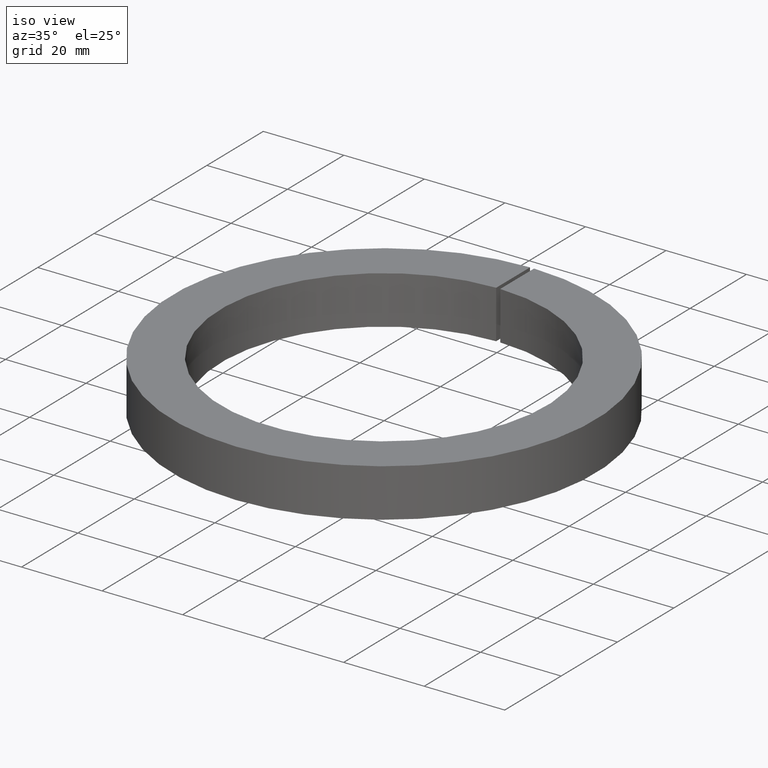
[diagram: clean part render]
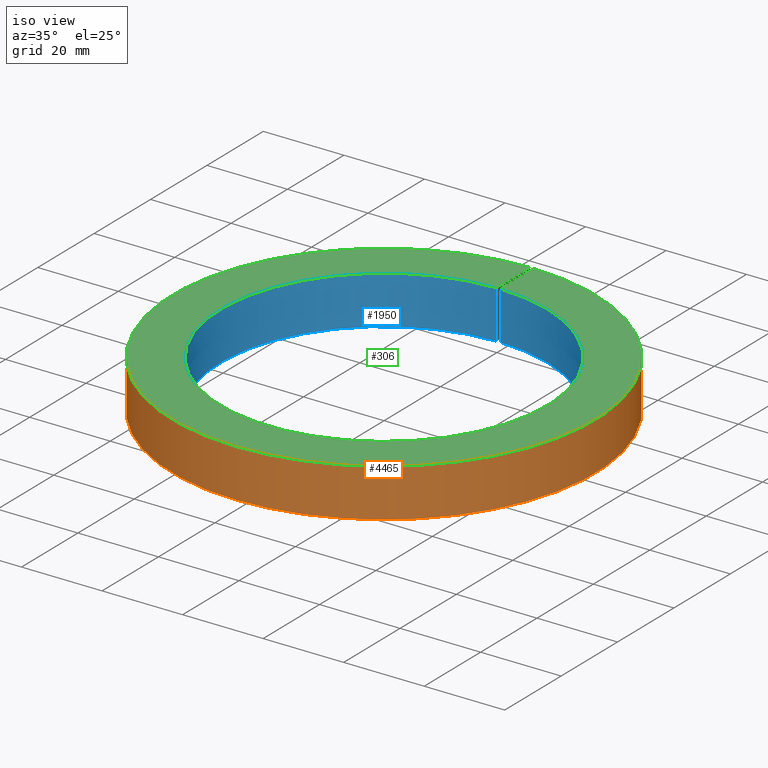
[diagram: same view with three faces highlighted in distinct colors, each labeled with its STEP entity id]
A machine part, iso view with three faces highlighted in distinct colors.
Their STEP definitions:

[orange] entity #4465 — the highlighted cylindrical surface (partial cylindrical patch) has radius 52.5 mm, axis along (-0, -0, -1).
#471 = CARTESIAN_POINT ( 'NONE',  ( -0.5000000000000000000, 52.49761899362674500, 6.000000000000000900 ) ) ;
#883 = CIRCLE ( 'NONE', #11005, 52.50000000000000000 ) ;
#1256 = LINE ( 'NONE', #9727, #6940 ) ;
#1425 = EDGE_CURVE ( 'NONE', #7160, #8765, #1256, .T. ) ;
#2159 = DIRECTION ( 'NONE',  ( -0.0000000000000000000, -0.0000000000000000000, 1.000000000000000000 ) ) ;
#2280 = CYLINDRICAL_SURFACE ( 'NONE', #4346, 52.50000000000000000 ) ;
#2641 = DIRECTION ( 'NONE',  ( -0.0000000000000000000, -0.0000000000000000000, -1.000000000000000000 ) ) ;
#3023 = AXIS2_PLACEMENT_3D ( 'NONE', #10129, #2641, #6400 ) ;
#3970 = CARTESIAN_POINT ( 'NONE',  ( 0.0000000000000000000, 0.0000000000000000000, 0.0000000000000000000 ) ) ;
#4192 = VERTEX_POINT ( 'NONE', #5134 ) ;
#4214 = CARTESIAN_POINT ( 'NONE',  ( 0.5000000000000000000, 52.49761899362674500, 5.999999999999998200 ) ) ;
#4346 = AXIS2_PLACEMENT_3D ( 'NONE', #3970, #5839, #4891 ) ;
#4465 = ADVANCED_FACE ( 'NONE', ( #7644 ), #2280, .T. ) ;
#4891 = DIRECTION ( 'NONE',  ( -1.000000000000000000, 0.0000000000000000000, 0.0000000000000000000 ) ) ;
#5134 = CARTESIAN_POINT ( 'NONE',  ( -0.5000000000000000000, 52.49761899362674500, -6.000000000000001800 ) ) ;
#5655 = ORIENTED_EDGE ( 'NONE', *, *, #1425, .T. ) ;
#5839 = DIRECTION ( 'NONE',  ( -0.0000000000000000000, -0.0000000000000000000, -1.000000000000000000 ) ) ;
#5914 = VECTOR ( 'NONE', #12215, 1000.000000000000000 ) ;
#5964 = VERTEX_POINT ( 'NONE', #471 ) ;
#6283 = CIRCLE ( 'NONE', #3023, 52.50000000000000000 ) ;
#6400 = DIRECTION ( 'NONE',  ( -1.000000000000000000, 0.0000000000000000000, 0.0000000000000000000 ) ) ;
#6469 = EDGE_CURVE ( 'NONE', #8765, #5964, #6283, .T. ) ;
#6623 = ORIENTED_EDGE ( 'NONE', *, *, #8465, .F. ) ;
#6940 = VECTOR ( 'NONE', #2159, 1000.000000000000000 ) ;
#6967 = DIRECTION ( 'NONE',  ( -1.000000000000000000, 0.0000000000000000000, 0.0000000000000000000 ) ) ;
#7160 = VERTEX_POINT ( 'NONE', #7924 ) ;
#7557 = EDGE_CURVE ( 'NONE', #7160, #4192, #883, .T. ) ;
#7644 = FACE_OUTER_BOUND ( 'NONE', #8056, .T. ) ;
#7712 = DIRECTION ( 'NONE',  ( -0.0000000000000000000, -0.0000000000000000000, -1.000000000000000000 ) ) ;
#7924 = CARTESIAN_POINT ( 'NONE',  ( 0.5000000000000000000, 52.49761899362674500, -6.000000000000001800 ) ) ;
#8056 = EDGE_LOOP ( 'NONE', ( #10439, #5655, #9083, #6623 ) ) ;
#8433 = LINE ( 'NONE', #9312, #5914 ) ;
#8465 = EDGE_CURVE ( 'NONE', #4192, #5964, #8433, .T. ) ;
#8629 = CARTESIAN_POINT ( 'NONE',  ( 0.0000000000000000000, 0.0000000000000000000, -6.000000000000001800 ) ) ;
#8765 = VERTEX_POINT ( 'NONE', #4214 ) ;
#9083 = ORIENTED_EDGE ( 'NONE', *, *, #6469, .T. ) ;
#9312 = CARTESIAN_POINT ( 'NONE',  ( -0.5000000000000000000, 52.49761899362674500, -6.000000000000001800 ) ) ;
#9727 = CARTESIAN_POINT ( 'NONE',  ( 0.5000000000000000000, 52.49761899362674500, -6.000000000000001800 ) ) ;
#10129 = CARTESIAN_POINT ( 'NONE',  ( 0.0000000000000000000, 0.0000000000000000000, 5.999999999999998200 ) ) ;
#10439 = ORIENTED_EDGE ( 'NONE', *, *, #7557, .F. ) ;
#11005 = AXIS2_PLACEMENT_3D ( 'NONE', #8629, #7712, #6967 ) ;
#12215 = DIRECTION ( 'NONE',  ( -0.0000000000000000000, -0.0000000000000000000, 1.000000000000000000 ) ) ;

[blue] entity #1950 — the highlighted cylindrical surface (partial cylindrical patch) has radius 40.5 mm, axis along (-0, -0, -1).
#445 = CARTESIAN_POINT ( 'NONE',  ( 0.5000000000000000000, 40.49691346263317400, -6.000000000000001800 ) ) ;
#482 = CARTESIAN_POINT ( 'NONE',  ( 0.0000000000000000000, 0.0000000000000000000, 0.0000000000000000000 ) ) ;
#1101 = VERTEX_POINT ( 'NONE', #2294 ) ;
#1447 = ORIENTED_EDGE ( 'NONE', *, *, #5291, .F. ) ;
#1950 = ADVANCED_FACE ( 'NONE', ( #7075 ), #9157, .F. ) ;
#1999 = LINE ( 'NONE', #445, #11814 ) ;
#2021 = CARTESIAN_POINT ( 'NONE',  ( 0.5000000000000000000, 40.49691346263317400, 6.000000000000000900 ) ) ;
#2198 = EDGE_LOOP ( 'NONE', ( #1447, #4743, #2636, #11904 ) ) ;
#2294 = CARTESIAN_POINT ( 'NONE',  ( -0.5000000000000000000, 40.49691346263317400, -6.000000000000001800 ) ) ;
#2636 = ORIENTED_EDGE ( 'NONE', *, *, #6854, .T. ) ;
#2716 = CARTESIAN_POINT ( 'NONE',  ( 0.0000000000000000000, 0.0000000000000000000, -6.000000000000001800 ) ) ;
#3491 = DIRECTION ( 'NONE',  ( -0.0000000000000000000, -0.0000000000000000000, -1.000000000000000000 ) ) ;
#3980 = DIRECTION ( 'NONE',  ( -1.000000000000000000, 0.0000000000000000000, 0.0000000000000000000 ) ) ;
#4469 = CARTESIAN_POINT ( 'NONE',  ( 0.5000000000000000000, 40.49691346263317400, -6.000000000000001800 ) ) ;
#4511 = CIRCLE ( 'NONE', #5351, 40.49999999999999300 ) ;
#4525 = DIRECTION ( 'NONE',  ( -0.0000000000000000000, -0.0000000000000000000, 1.000000000000000000 ) ) ;
#4743 = ORIENTED_EDGE ( 'NONE', *, *, #11654, .F. ) ;
#4781 = CARTESIAN_POINT ( 'NONE',  ( 0.0000000000000000000, 0.0000000000000000000, 6.000000000000000900 ) ) ;
#5291 = EDGE_CURVE ( 'NONE', #8200, #5368, #10450, .T. ) ;
#5351 = AXIS2_PLACEMENT_3D ( 'NONE', #2716, #6506, #5513 ) ;
#5368 = VERTEX_POINT ( 'NONE', #9704 ) ;
#5513 = DIRECTION ( 'NONE',  ( -1.000000000000000000, 0.0000000000000000000, 0.0000000000000000000 ) ) ;
#5682 = VECTOR ( 'NONE', #8863, 1000.000000000000000 ) ;
#5683 = AXIS2_PLACEMENT_3D ( 'NONE', #482, #3491, #7235 ) ;
#6503 = VERTEX_POINT ( 'NONE', #4469 ) ;
#6506 = DIRECTION ( 'NONE',  ( -0.0000000000000000000, -0.0000000000000000000, -1.000000000000000000 ) ) ;
#6854 = EDGE_CURVE ( 'NONE', #6503, #1101, #4511, .T. ) ;
#7075 = FACE_OUTER_BOUND ( 'NONE', #2198, .T. ) ;
#7235 = DIRECTION ( 'NONE',  ( -1.000000000000000000, 0.0000000000000000000, 0.0000000000000000000 ) ) ;
#8200 = VERTEX_POINT ( 'NONE', #2021 ) ;
#8702 = EDGE_CURVE ( 'NONE', #1101, #5368, #10864, .T. ) ;
#8863 = DIRECTION ( 'NONE',  ( -0.0000000000000000000, -0.0000000000000000000, 1.000000000000000000 ) ) ;
#9157 = CYLINDRICAL_SURFACE ( 'NONE', #5683, 40.49999999999999300 ) ;
#9704 = CARTESIAN_POINT ( 'NONE',  ( -0.5000000000000000000, 40.49691346263317400, 6.000000000000000900 ) ) ;
#10260 = AXIS2_PLACEMENT_3D ( 'NONE', #4781, #11429, #3980 ) ;
#10450 = CIRCLE ( 'NONE', #10260, 40.49999999999999300 ) ;
#10661 = CARTESIAN_POINT ( 'NONE',  ( -0.5000000000000000000, 40.49691346263317400, -6.000000000000001800 ) ) ;
#10864 = LINE ( 'NONE', #10661, #5682 ) ;
#11429 = DIRECTION ( 'NONE',  ( -0.0000000000000000000, -0.0000000000000000000, -1.000000000000000000 ) ) ;
#11654 = EDGE_CURVE ( 'NONE', #6503, #8200, #1999, .T. ) ;
#11814 = VECTOR ( 'NONE', #4525, 1000.000000000000000 ) ;
#11904 = ORIENTED_EDGE ( 'NONE', *, *, #8702, .T. ) ;

[green] entity #306 — the highlighted planar face has unit normal (-0, 0, -1).
#149 = VECTOR ( 'NONE', #3310, 1000.000000000000000 ) ;
#306 = ADVANCED_FACE ( 'NONE', ( #7029 ), #7302, .F. ) ;
#471 = CARTESIAN_POINT ( 'NONE',  ( -0.5000000000000000000, 52.49761899362674500, 6.000000000000000900 ) ) ;
#695 = AXIS2_PLACEMENT_3D ( 'NONE', #2517, #1588, #7344 ) ;
#1197 = LINE ( 'NONE', #10710, #149 ) ;
#1588 = DIRECTION ( 'NONE',  ( -0.0000000000000000000, 0.0000000000000000000, -1.000000000000000000 ) ) ;
#2021 = CARTESIAN_POINT ( 'NONE',  ( 0.5000000000000000000, 40.49691346263317400, 6.000000000000000900 ) ) ;
#2133 = LINE ( 'NONE', #7692, #5879 ) ;
#2333 = EDGE_LOOP ( 'NONE', ( #10332, #3435, #2822, #8817 ) ) ;
#2517 = CARTESIAN_POINT ( 'NONE',  ( 0.0000000000000000000, -40.49999999999999300, 6.000000000000000000 ) ) ;
#2641 = DIRECTION ( 'NONE',  ( -0.0000000000000000000, -0.0000000000000000000, -1.000000000000000000 ) ) ;
#2822 = ORIENTED_EDGE ( 'NONE', *, *, #5291, .T. ) ;
#3023 = AXIS2_PLACEMENT_3D ( 'NONE', #10129, #2641, #6400 ) ;
#3310 = DIRECTION ( 'NONE',  ( 0.0000000000000000000, 1.000000000000000000, -0.0000000000000000000 ) ) ;
#3435 = ORIENTED_EDGE ( 'NONE', *, *, #4109, .F. ) ;
#3980 = DIRECTION ( 'NONE',  ( -1.000000000000000000, 0.0000000000000000000, 0.0000000000000000000 ) ) ;
#4109 = EDGE_CURVE ( 'NONE', #8200, #8765, #2133, .T. ) ;
#4214 = CARTESIAN_POINT ( 'NONE',  ( 0.5000000000000000000, 52.49761899362674500, 5.999999999999998200 ) ) ;
#4781 = CARTESIAN_POINT ( 'NONE',  ( 0.0000000000000000000, 0.0000000000000000000, 6.000000000000000900 ) ) ;
#5291 = EDGE_CURVE ( 'NONE', #8200, #5368, #10450, .T. ) ;
#5368 = VERTEX_POINT ( 'NONE', #9704 ) ;
#5879 = VECTOR ( 'NONE', #5916, 1000.000000000000000 ) ;
#5916 = DIRECTION ( 'NONE',  ( 0.0000000000000000000, 1.000000000000000000, -0.0000000000000000000 ) ) ;
#5932 = EDGE_CURVE ( 'NONE', #5368, #5964, #1197, .T. ) ;
#5964 = VERTEX_POINT ( 'NONE', #471 ) ;
#6283 = CIRCLE ( 'NONE', #3023, 52.50000000000000000 ) ;
#6400 = DIRECTION ( 'NONE',  ( -1.000000000000000000, 0.0000000000000000000, 0.0000000000000000000 ) ) ;
#6469 = EDGE_CURVE ( 'NONE', #8765, #5964, #6283, .T. ) ;
#7029 = FACE_OUTER_BOUND ( 'NONE', #2333, .T. ) ;
#7302 = PLANE ( 'NONE',  #695 ) ;
#7344 = DIRECTION ( 'NONE',  ( -1.000000000000000000, 0.0000000000000000000, 0.0000000000000000000 ) ) ;
#7692 = CARTESIAN_POINT ( 'NONE',  ( 0.5000000000000000000, 0.0000000000000000000, 6.000000000000000900 ) ) ;
#8200 = VERTEX_POINT ( 'NONE', #2021 ) ;
#8765 = VERTEX_POINT ( 'NONE', #4214 ) ;
#8817 = ORIENTED_EDGE ( 'NONE', *, *, #5932, .T. ) ;
#9704 = CARTESIAN_POINT ( 'NONE',  ( -0.5000000000000000000, 40.49691346263317400, 6.000000000000000900 ) ) ;
#10129 = CARTESIAN_POINT ( 'NONE',  ( 0.0000000000000000000, 0.0000000000000000000, 5.999999999999998200 ) ) ;
#10260 = AXIS2_PLACEMENT_3D ( 'NONE', #4781, #11429, #3980 ) ;
#10332 = ORIENTED_EDGE ( 'NONE', *, *, #6469, .F. ) ;
#10450 = CIRCLE ( 'NONE', #10260, 40.49999999999999300 ) ;
#10710 = CARTESIAN_POINT ( 'NONE',  ( -0.5000000000000000000, 0.0000000000000000000, 6.000000000000000900 ) ) ;
#11429 = DIRECTION ( 'NONE',  ( -0.0000000000000000000, -0.0000000000000000000, -1.000000000000000000 ) ) ;